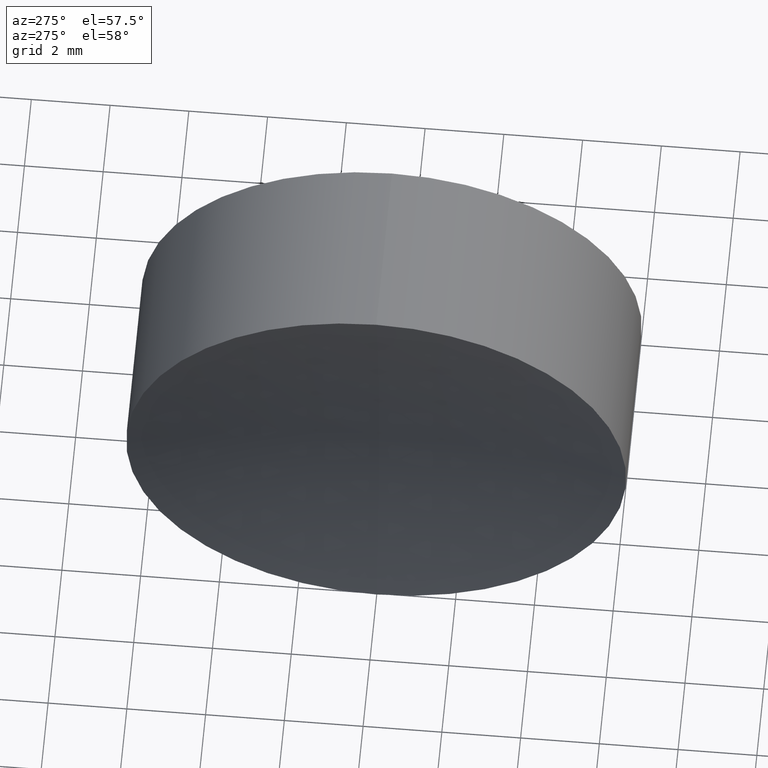
[diagram: clean part render]
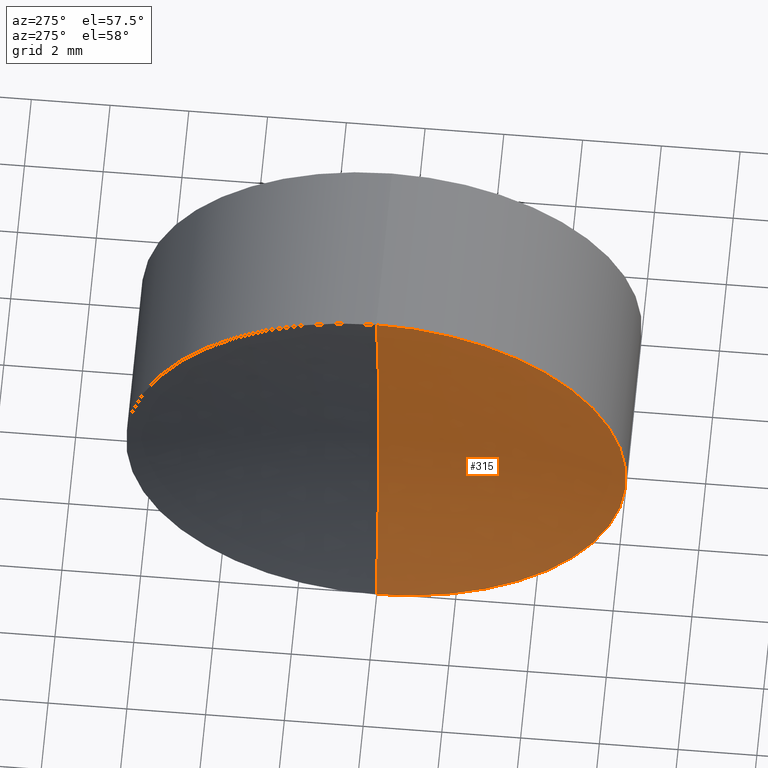
[diagram: same view with one face highlighted and labeled with its STEP entity id]
A machine part, auxiliary view. The second image highlights one B-rep face of the part: STEP entity #315.
In plain terms, the highlighted spherical surface has radius 25.6 mm.
Its self-contained STEP definition (entity closure, byte-faithful):
#7 = DIRECTION ( 'NONE',  ( 0.0000000000000000000, -1.224646799147353200E-016, 1.000000000000000000 ) ) ;
#29 = CARTESIAN_POINT ( 'NONE',  ( 226.5920414512665400, 0.0000000000000000000, -3.135096722806400500E-015 ) ) ;
#30 = EDGE_LOOP ( 'NONE', ( #164, #201, #165 ) ) ;
#40 = CIRCLE ( 'NONE', #171, 25.60000000000001900 ) ;
#52 = AXIS2_PLACEMENT_3D ( 'NONE', #300, #119, #271 ) ;
#64 = CARTESIAN_POINT ( 'NONE',  ( 225.7919910479895400, 7.776507174585746400E-016, -6.350000000000048500 ) ) ;
#77 = SPHERICAL_SURFACE ( 'NONE', #279, 25.60000000000001900 ) ;
#86 = CARTESIAN_POINT ( 'NONE',  ( 200.9920414512665400, 0.0000000000000000000, -9.169891744871357800E-022 ) ) ;
#105 = EDGE_CURVE ( 'NONE', #226, #322, #40, .T. ) ;
#119 = DIRECTION ( 'NONE',  ( 0.0000000000000000000, -1.000000000000000000, 0.0000000000000000000 ) ) ;
#123 = CIRCLE ( 'NONE', #290, 6.350000000000041400 ) ;
#130 = FACE_OUTER_BOUND ( 'NONE', #30, .T. ) ;
#141 = VERTEX_POINT ( 'NONE', #248 ) ;
#153 = DIRECTION ( 'NONE',  ( 0.0000000000000000000, 0.0000000000000000000, 1.000000000000000000 ) ) ;
#164 = ORIENTED_EDGE ( 'NONE', *, *, #329, .F. ) ;
#165 = ORIENTED_EDGE ( 'NONE', *, *, #257, .T. ) ;
#171 = AXIS2_PLACEMENT_3D ( 'NONE', #86, #185, #7 ) ;
#185 = DIRECTION ( 'NONE',  ( 2.249639673992786400E-032, 1.000000000000000000, 1.224646799147353200E-016 ) ) ;
#201 = ORIENTED_EDGE ( 'NONE', *, *, #105, .T. ) ;
#212 = CARTESIAN_POINT ( 'NONE',  ( 225.7919910479895400, 0.0000000000000000000, -4.162722405629622800E-014 ) ) ;
#226 = VERTEX_POINT ( 'NONE', #29 ) ;
#248 = CARTESIAN_POINT ( 'NONE',  ( 225.7919910479895400, 0.0000000000000000000, 6.350000000000003200 ) ) ;
#249 = DIRECTION ( 'NONE',  ( 0.0000000000000000000, 0.0000000000000000000, 1.000000000000000000 ) ) ;
#257 = EDGE_CURVE ( 'NONE', #322, #141, #123, .T. ) ;
#271 = DIRECTION ( 'NONE',  ( 0.0000000000000000000, 0.0000000000000000000, -1.000000000000000000 ) ) ;
#279 = AXIS2_PLACEMENT_3D ( 'NONE', #303, #330, #249 ) ;
#290 = AXIS2_PLACEMENT_3D ( 'NONE', #212, #337, #153 ) ;
#300 = CARTESIAN_POINT ( 'NONE',  ( 200.9920414512665400, 0.0000000000000000000, -9.169891744871357800E-022 ) ) ;
#303 = CARTESIAN_POINT ( 'NONE',  ( 200.9920414512665400, 0.0000000000000000000, -9.169891744871357800E-022 ) ) ;
#308 = CIRCLE ( 'NONE', #52, 25.60000000000001900 ) ;
#315 = ADVANCED_FACE ( 'NONE', ( #130 ), #77, .F. ) ;
#322 = VERTEX_POINT ( 'NONE', #64 ) ;
#329 = EDGE_CURVE ( 'NONE', #226, #141, #308, .T. ) ;
#330 = DIRECTION ( 'NONE',  ( -0.0000000000000000000, 1.000000000000000000, 0.0000000000000000000 ) ) ;
#337 = DIRECTION ( 'NONE',  ( -1.000000000000000000, -0.0000000000000000000, 1.836970198721029700E-016 ) ) ;